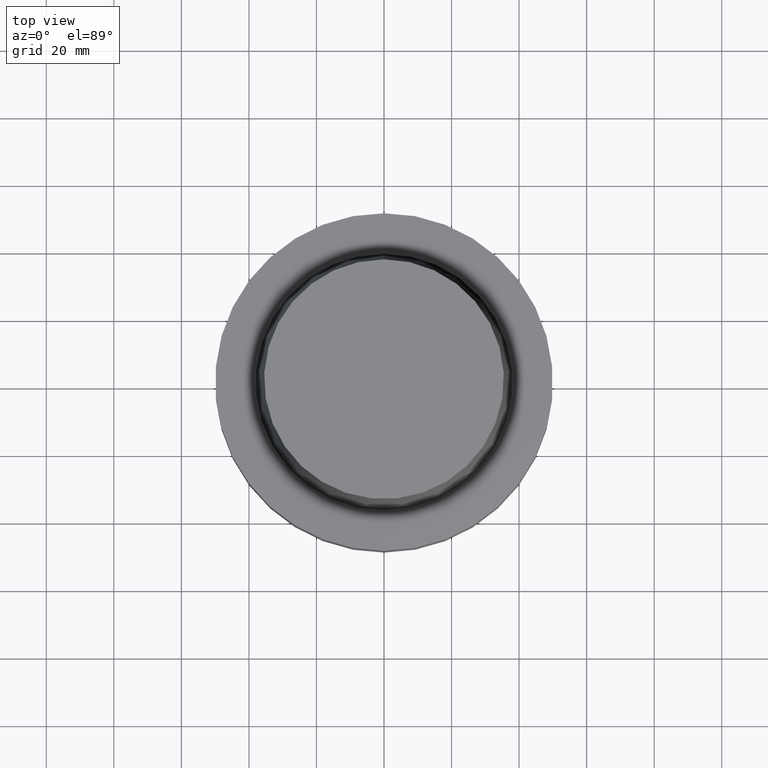
[diagram: clean part render]
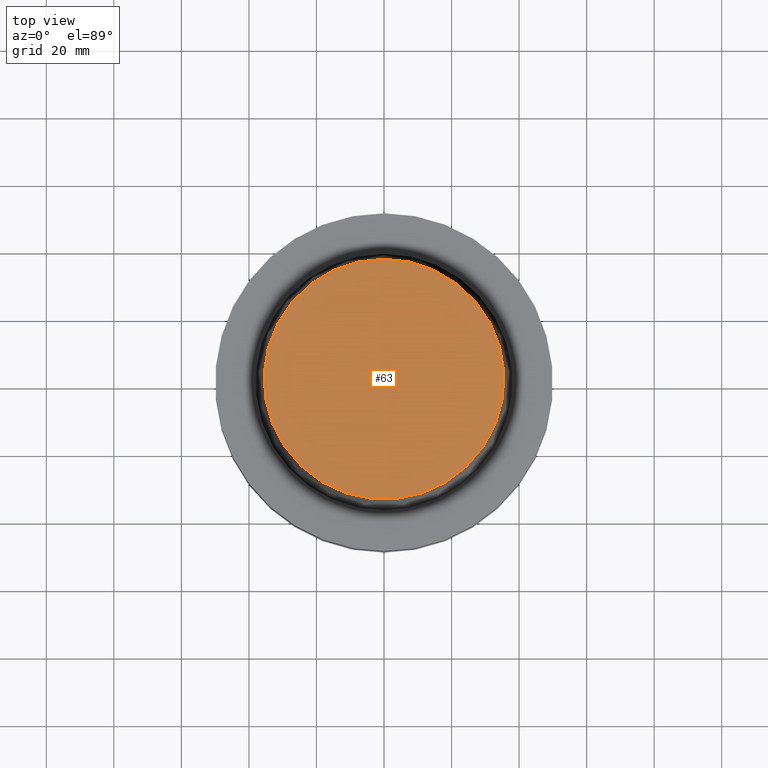
[diagram: same view with one face highlighted and labeled with its STEP entity id]
A machine part, top view. The second image highlights one B-rep face of the part: STEP entity #63.
In plain terms, the highlighted planar face has unit normal (-0, -0, 1).
Its self-contained STEP definition (entity closure, byte-faithful):
#63=ADVANCED_FACE('Unnamed[1]',(#164),#165,.T.);
#128=EDGE_CURVE('Unnamed[1]',#265,#265,#266,.T.);
#164=FACE_OUTER_BOUND('',#299,.T.);
#165=PLANE('',#300);
#265=VERTEX_POINT('',#425);
#266=CIRCLE('',#426,35.5000000015618);
#299=EDGE_LOOP('',(#455));
#300=AXIS2_PLACEMENT_3D('',#456,#457,#458);
#425=CARTESIAN_POINT('',(-3.06161699786838E-015,35.5000000015618,50.0));
#426=AXIS2_PLACEMENT_3D('',#567,#568,#569);
#455=ORIENTED_EDGE('',*,*,#128,.F.);
#456=CARTESIAN_POINT('',(-3.06161699786838E-015,17.7500000007809,50.0));
#457=DIRECTION('',(-6.12323399573677E-017,-1.22464679914735E-016,1.0));
#458=DIRECTION('',(1.23259516440783E-032,-1.0,-1.22464679914735E-016));
#567=CARTESIAN_POINT('',(-3.06161699786838E-015,-6.12323399573676E-015,50.0));
#568=DIRECTION('',(6.12323399573677E-017,1.22464679914735E-016,-1.0));
#569=DIRECTION('',(-1.23259516440783E-032,1.0,1.22464679914735E-016));